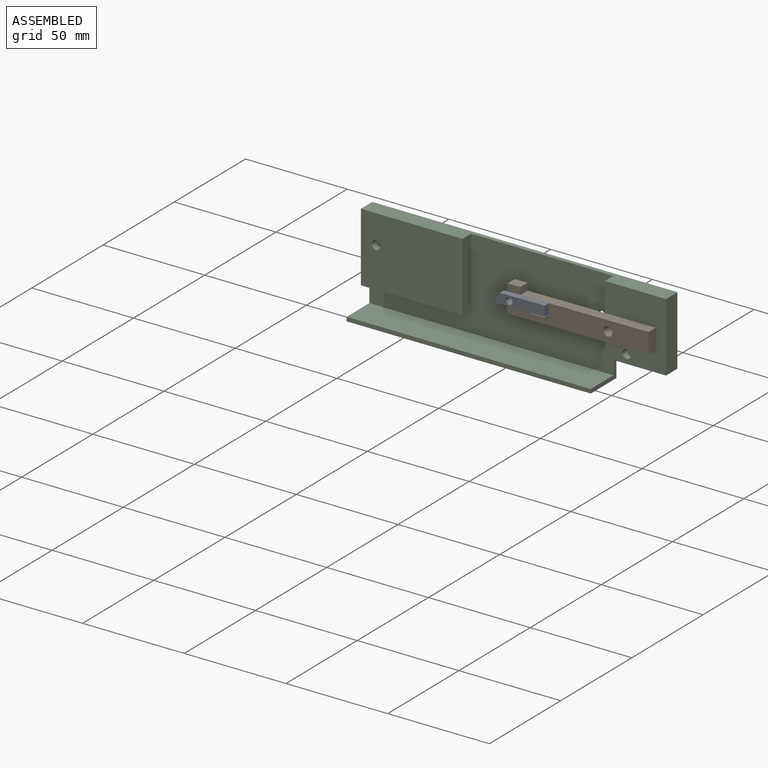
[diagram: assembled view]
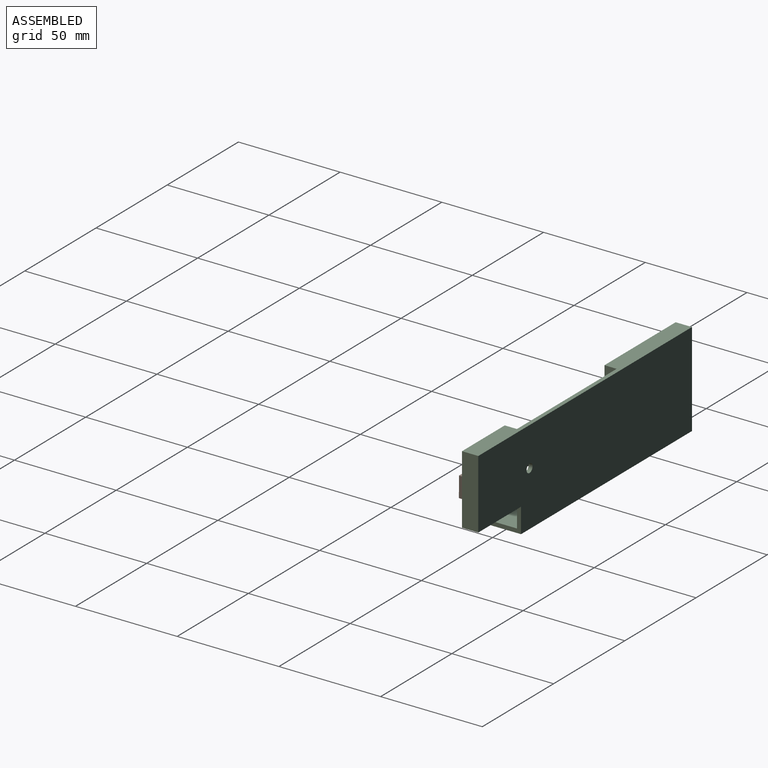
[diagram: assembled view, second angle]
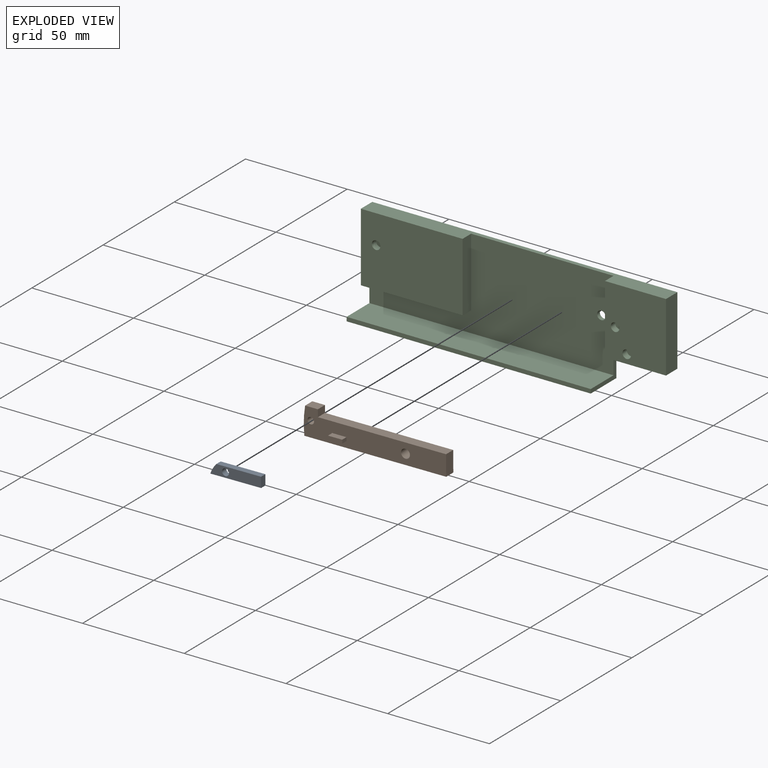
[diagram: exploded view]
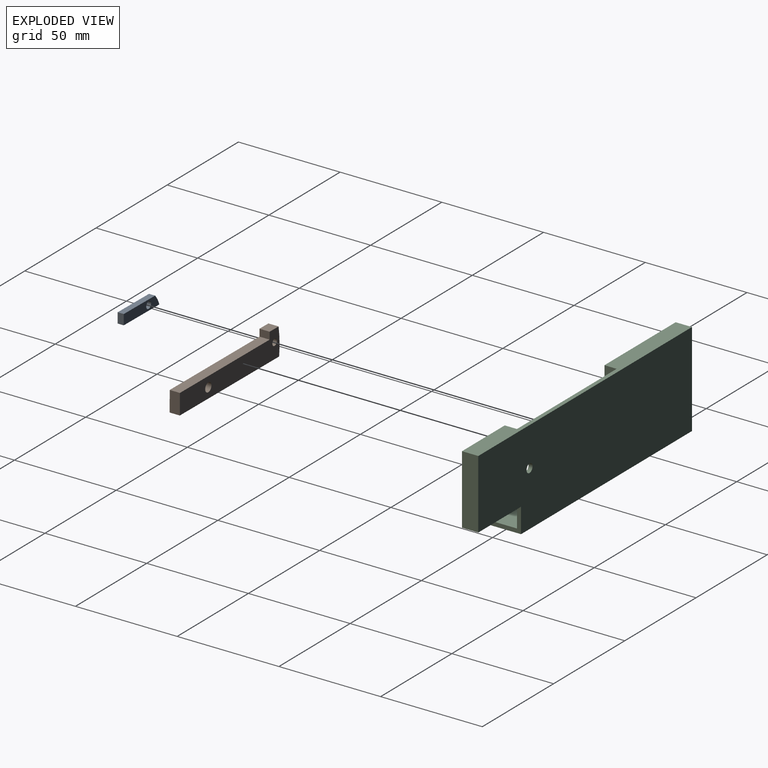
[diagram: exploded view, second angle]
ASSEMBLY  parts=3 mates=4
PART A: 7 faces, bbox 25x3x5 mm
  f0: plane 22x3mm, normal (0,0,1), area 66mm2, adj f1,f3,f5,f6
  f1: cylinder r=14.87mm len=5mm, axis (0,1,0), area 17.6mm2, adj f0,f2,f5,f6
  f2: plane 25x3mm, normal (0,0,-1), area 75mm2, adj f1,f3,f5,f6
  f3: plane 5x3mm, normal (1,0,0), area 15mm2, adj f0,f2,f5,f6
  f4: cylinder r=1.7mm len=3.4mm, axis (0,1,0), area 32mm2, adj f5,f6
  f5: plane 25x5mm, normal (0,-1,0), area 109.5mm2, adj f0,f1,f2,f3,f4
  f6: plane 25x5mm, normal (0,1,0), area 109.5mm2, adj f0,f1,f2,f3,f4
PART B: 15 faces, bbox 70x8x13.5 mm
  f0: plane 70x13.5mm, normal (0,-1,0), area 686.5mm2, adj f1,f3,f4,f5,f6,f7,f8,f9
  f1: plane 6.27x5mm, normal (0,0,1), area 31.4mm2, adj f0,f2,f6,f8
  f2: plane 70x13.5mm, normal (0,1,0), area 698.8mm2, adj f1,f3,f4,f5,f6,f7,f8,f14
  f3: plane 69.75x5mm, normal (0,0,-1), area 348.7mm2, adj f0,f2,f4,f8
  f4: plane 10x5mm, normal (1,0,0), area 50mm2, adj f0,f2,f3,f5
  f5: plane 63x5mm, normal (0,0,1), area 315mm2, adj f0,f2,f4,f6
  f6: plane 5x3.5mm, normal (1,0,0), area 17.5mm2, adj f0,f1,f2,f5
  f7: cylinder r=2.2mm len=5mm, axis (0,1,0), area 69.1mm2, adj f0,f2
  f8: cylinder r=50mm len=13.5mm, axis (0,-1,0), area 67.7mm2, adj f0,f1,f2,f3
  f9: plane 3x1.75mm, normal (1,0,0), area 5.2mm2, adj f0,f10,f12,f13
  f10: plane 7x3mm, normal (0,0,1), area 21mm2, adj f0,f9,f11,f13
  f11: plane 3x1.75mm, normal (-1,0,0), area 5.2mm2, adj f0,f10,f12,f13
  f12: plane 7x3mm, normal (0,0,-1), area 21mm2, adj f0,f9,f11,f13
  f13: plane 7x1.75mm, normal (0,-1,0), area 12.2mm2, adj f9,f10,f11,f12
  f14: cylinder r=1.6mm len=5mm, axis (0,-1,0), area 50.3mm2, adj f0,f2
PART C: 22 faces, bbox 150x18x46.2 mm
  f0: plane 30x8mm, normal (0,0,-1), area 240mm2, adj f3,f7,f8,f9,f18
  f1: plane 120x44.2mm, normal (0,-1,0), area 3590.1mm2, adj f2,f4,f5,f6,f9,f11,f18,f20
  f2: plane 150x8mm, normal (0,0,1), area 780mm2, adj f1,f3,f6,f7,f8,f9,f10,f11
  f3: plane 34x8mm, normal (1,0,0), area 272mm2, adj f0,f2,f7,f8
  f4: plane 50x6mm, normal (0,0,-1), area 300mm2, adj f1,f6,f10,f11
  f5: cylinder r=2.1mm len=4.2mm, axis (0,-1,0), area 26.4mm2, adj f1,f7
  f6: plane 46.2x18mm, normal (-1,0,0), area 328.4mm2, adj f1,f2,f4,f7,f10,f19,f20,f21
  f7: plane 150x46.2mm, normal (0,1,0), area 6550.1mm2, adj f0,f2,f3,f5,f6,f18,f21
  f8: plane 34x30mm, normal (0,-1,0), area 992.3mm2, adj f0,f2,f3,f9,f15,f17
  f9: plane 34x6mm, normal (-1,0,0), area 204mm2, adj f0,f1,f2,f8
  f10: plane 50x34mm, normal (0,-1,0), area 1686.1mm2, adj f2,f4,f6,f11,f13
  f11: plane 34x6mm, normal (1,0,0), area 204mm2, adj f1,f2,f4,f10
  f12: plane 4.2x4.2mm, normal (0,-1,0), area 13.9mm2, adj f13
  f13: cylinder r=2.1mm len=4.2mm, axis (0,-1,0), area 40.9mm2, adj f10,f12
  f14: plane 4.2x4.2mm, normal (0,-1,0), area 13.9mm2, adj f15
  f15: cylinder r=2.1mm len=4.2mm, axis (0,-1,0), area 40.9mm2, adj f8,f14
  f16: plane 4.2x4.2mm, normal (0,-1,0), area 13.9mm2, adj f17
  f17: cylinder r=2.1mm len=4.2mm, axis (0,-1,0), area 40.9mm2, adj f8,f16
  f18: plane 18x12.2mm, normal (1,0,0), area 56.4mm2, adj f0,f1,f7,f19,f20,f21
  f19: plane 120x2mm, normal (0,-1,0), area 240mm2, adj f6,f18,f20,f21
  f20: plane 120x16mm, normal (0,0,1), area 1920mm2, adj f1,f6,f18,f19
  f21: plane 120x18mm, normal (0,0,-1), area 2160mm2, adj f6,f7,f18,f19
PLACE A rot(axis=(0,-1,0),0.6deg) t=(0.06,0,-0.31)mm
PLACE B rot(axis=(0,-1,0),0.3deg) t=(0.03,0,-0.3)mm
PLACE C at identity fixed
MATE cylindrical A.f4 <-> B.f14  axis (0,1,0) through (3.49,-4,7.22)mm
MATE planar C.f8 <-> B.f2  axis (0,-1,0) through (60.2,2.5,7.41)mm
MATE planar B.f0 <-> A.f6  axis (0,-1,0) through (34.35,-2.5,5.12)mm
MATE cylindrical C.f17 <-> B.f7  axis (0,-1,0) through (50,2.5,5)mm
